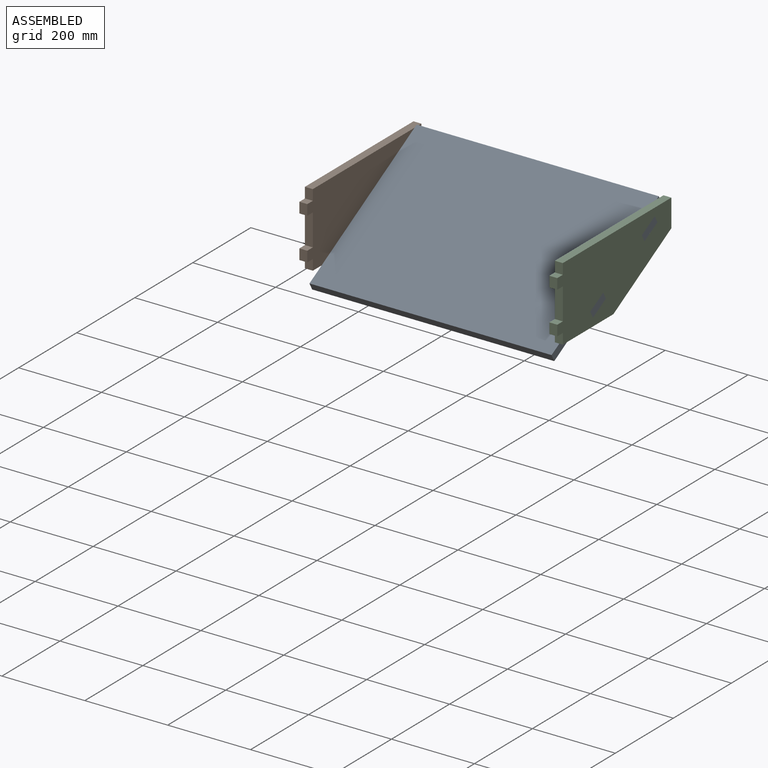
[diagram: assembled view]
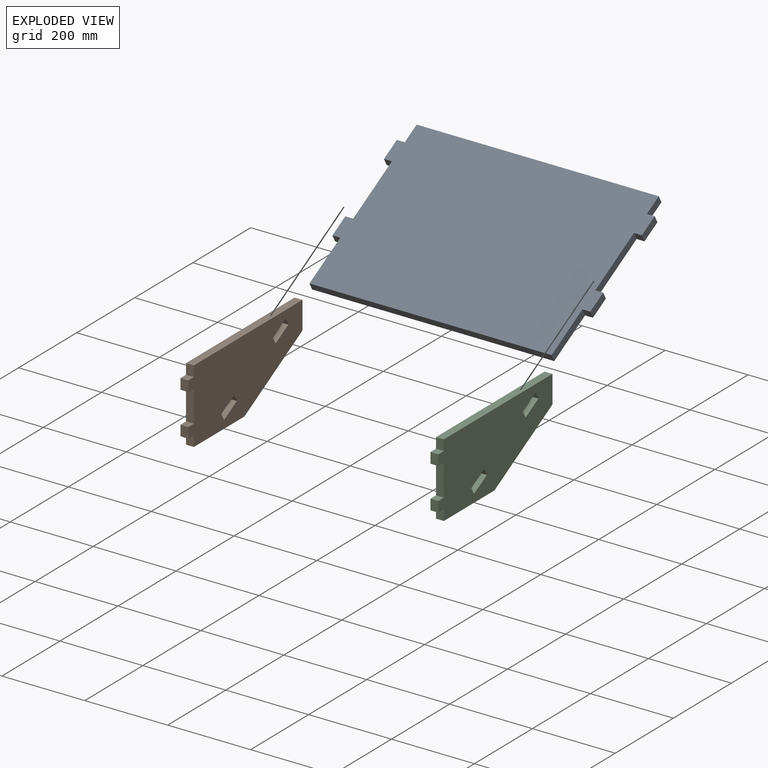
[diagram: exploded view]
GUIDED TOUR — MATED ASSEMBLY (Onshape document 879466acc5ad24adc37cb7cc, AutoMate assembly 879466acc5ad24adc37cb7cc_b2600b43bbd619d86eaf22b3_da891fab06d9ec3ba44434d8_default)

This assembly has 3 components, labeled P0..P2 below (a component is one placed occurrence of a part; the same part can appear more than once), held together by 2 mates. A mate is a constraint between two components; its type names the relative motion it leaves free:
  FASTENED — locks the two components together rigidly (no relative motion),
  SLIDER — leaves translation along the listed axis free.
Axis/direction vectors are unit vectors and 'through' points are millimeter coordinates, both in the assembly's world frame.

MATES
  1. SLIDER "Slider 1": P1 <-> P0, axis (0.000, -0.874, -0.486) through (-701.21, 323.72, -41.12) mm
  2. FASTENED "Fastened 1": P0 <-> P2, direction (0.000, 0.874, 0.486) through (-97.96, 323.72, -41.12) mm

ASSEMBLY ORDER
  1. P0 — the base component [order heuristic]
  2. P1 — core [order heuristic]
  3. P2 [order verified]
Order-tag legend:
  [order verified] — this step's position reverses a verified removal order: the component was checked to insert without passing through the ones already placed.
  [order heuristic] — the first 2 components form the assembly's core: parts whose collision-free extraction could not be verified, listed in mate-graph order.

Of the 3 components, 3 carry the full construction recipe — the FeatureScript program that regenerates the part's solid from scratch; the rest are supplied as boundary geometry only.
Each toured component is shown spotlighted twice — in the assembled view, then in the exploded view, where a leader line traces a displaced component back to its assembled socket (saturated green if recipe-attached, orange if geometry-only; every other component desaturated gray) — followed by its recipe or geometry summary and the mates that hold it.
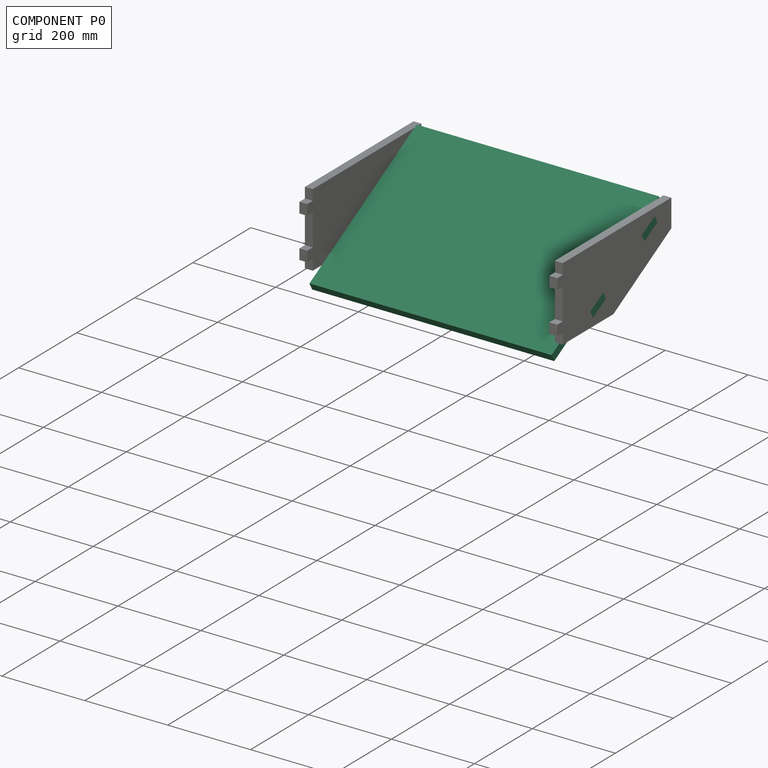
[diagram: component P0 — assembled]
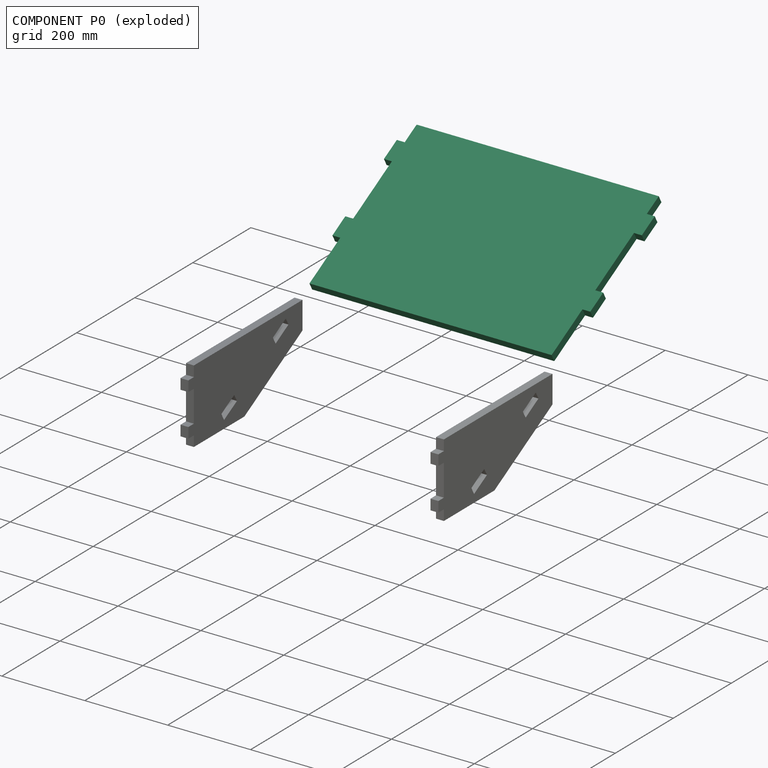
[diagram: component P0 — exploded]
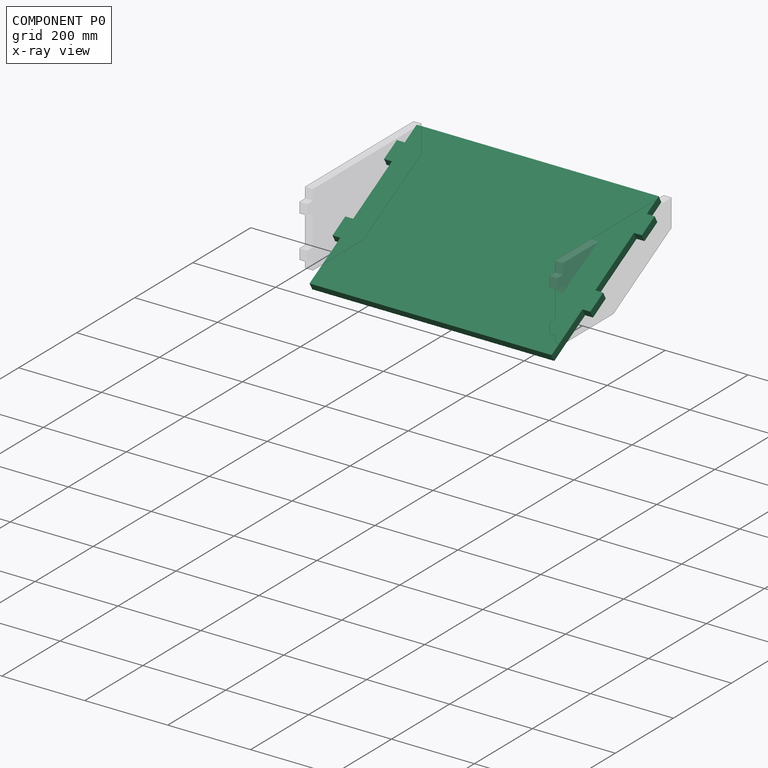
[diagram: component P0 — x-ray view]
COMPONENT P0 — recipe-attached (CADFS 00572429, mesh-verified: the recipe's output STEP matches this component's geometry to below the mesh-comparison resolution (tessellation chordal tolerance ~1.13 mm)).
Held by: SLIDER mate "Slider 1" to P1; FASTENED mate "Fastened 1" to P2.
Construction recipe (FeatureScript — the CAD program that rebuilds this solid; sketch coordinates are in the units given by the * unit suffixes, e.g. mm):

FeatureScript 1549;
import(path : "onshape/std/geometry.fs", version : "1549.0");
import(path : "onshape/std/common.fs", version : "1549.0");
const mm = millimeter;
const VERTEX = EntityType.VERTEX;
const EDGE = EntityType.EDGE;
const FACE = EntityType.FACE;
const BODY = EntityType.BODY;
function v(x, y){return vector(x, y);}
function OD(order){return orderDisambiguation(order);}
function OSD(set){return originalSetDisambiguation(set);}
function TD(topology){return topologyDisambiguation(topology);}
function TDD(query){return trueDependencyDisambiguation(query);}
function sQuery(a, b, c) {return sketchEntityQuery(a, b, c);}

annotation { "Feature Type Name" : "Feature", "Feature Type Description" : "" }
export const myFeature = defineFeature(function(context is Context, id is Id, definition is map)
    precondition{}
    {
        {
            var Q0;
            Q0=qCreatedBy(makeId("Front.planeOp"),FACE);
            var sketch = newSketch(context, id + "F0", { "sketchPlane" : qUnion([Q0])});
            skLineSegment(sketch, "E0.bottom", {"start": v(0, 0) * mm, "end": v(584.2, 0) * mm});
            skLineSegment(sketch, "E0.top", {"start": v(0, 347.98) * mm, "end": v(584.2, 347.98) * mm});
            skLineSegment(sketch, "E0.left", {"start": v(0, 0) * mm, "end": v(0, 46.99) * mm});
            skLineSegment(sketch, "E0.right", {"start": v(584.2, 0) * mm, "end": v(584.2, 46.99) * mm});
            skLineSegment(sketch, "E1", {"start": v(292.1, 347.98) * mm, "end": v(292.1, -296.1) * mm, "construction": true});
            skLineSegment(sketch, "E2", {"start": v(0, 174) * mm, "end": v(768.38, 174) * mm, "construction": true});
            skLineSegment(sketch, "E3.bottom", {"start": v(0, 301) * mm, "end": v(-19.05, 301) * mm});
            skLineSegment(sketch, "E3.top", {"start": v(0, 250.2) * mm, "end": v(-19.05, 250.2) * mm});
            skLineSegment(sketch, "E3.right", {"start": v(-19.05, 301) * mm, "end": v(-19.05, 250.2) * mm});
            skLineSegment(sketch, "E4.MirrorCS", {"start": v(0, 46.99) * mm, "end": v(-19.05, 46.99) * mm});
            skLineSegment(sketch, "E5.MirrorCS", {"start": v(-19.05, 46.99) * mm, "end": v(-19.05, 97.79) * mm});
            skLineSegment(sketch, "E6.MirrorCS", {"start": v(0, 97.79) * mm, "end": v(-19.05, 97.79) * mm});
            skLineSegment(sketch, "E7.MirrorCS", {"start": v(584.2, 301) * mm, "end": v(603.25, 301) * mm});
            skLineSegment(sketch, "E8.MirrorCS", {"start": v(603.25, 301) * mm, "end": v(603.25, 250.2) * mm});
            skLineSegment(sketch, "E9.MirrorCS", {"start": v(584.2, 250.2) * mm, "end": v(603.25, 250.2) * mm});
            skLineSegment(sketch, "E10.MirrorCS", {"start": v(584.2, 97.79) * mm, "end": v(603.25, 97.79) * mm});
            skLineSegment(sketch, "E11.MirrorCS", {"start": v(603.25, 46.99) * mm, "end": v(603.25, 97.79) * mm});
            skLineSegment(sketch, "E12.MirrorCS", {"start": v(584.2, 46.99) * mm, "end": v(603.25, 46.99) * mm});
            skLineSegment(sketch, "E13.trimOffspring", {"start": v(0, 301) * mm, "end": v(0, 347.98) * mm});
            skPoint(sketch, "E14.MirrorCS.end.orphan", {"position": v(0, 97.79) * mm});
            skPoint(sketch, "E14.MirrorCS.start.orphan", {"position": v(0, 46.99) * mm});
            skLineSegment(sketch, "E15.trimOffspring", {"start": v(0, 97.79) * mm, "end": v(0, 250.2) * mm});
            skLineSegment(sketch, "E16.trimOffspring", {"start": v(584.2, 97.79) * mm, "end": v(584.2, 250.2) * mm});
            skLineSegment(sketch, "E17.trimOffspring", {"start": v(584.2, 301) * mm, "end": v(584.2, 347.98) * mm});
            skLineSegment(sketch, "E18", {"start": v(0, 347.98) * mm, "end": v(0, 422.61) * mm});
            skLineSegment(sketch, "E19", {"start": v(584.2, 347.98) * mm, "end": v(584.2, 422.61) * mm});
            skLineSegment(sketch, "E20", {"start": v(0, 422.61) * mm, "end": v(584.2, 422.61) * mm});
            skSolve(sketch);
        }
        {
            var Q0;
            Q0 = qSketchRegion(id + "F0", true);
            extrude(context, id + "F1", {"entities" : qUnion([Q0]), "depth" : 19.05 * mm, "offsetDistance" : 25.4 * mm});
        }
    });
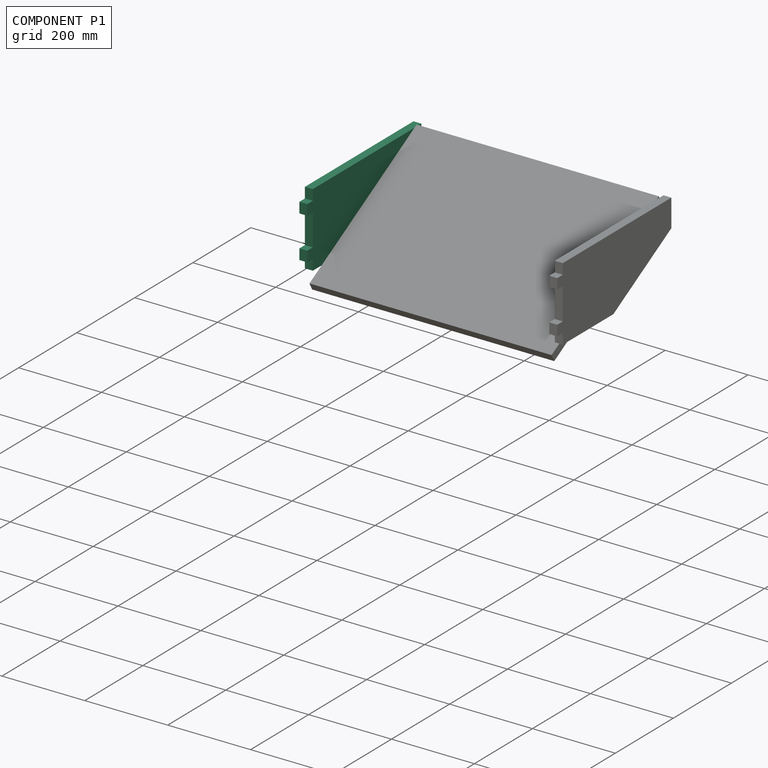
[diagram: component P1 — assembled]
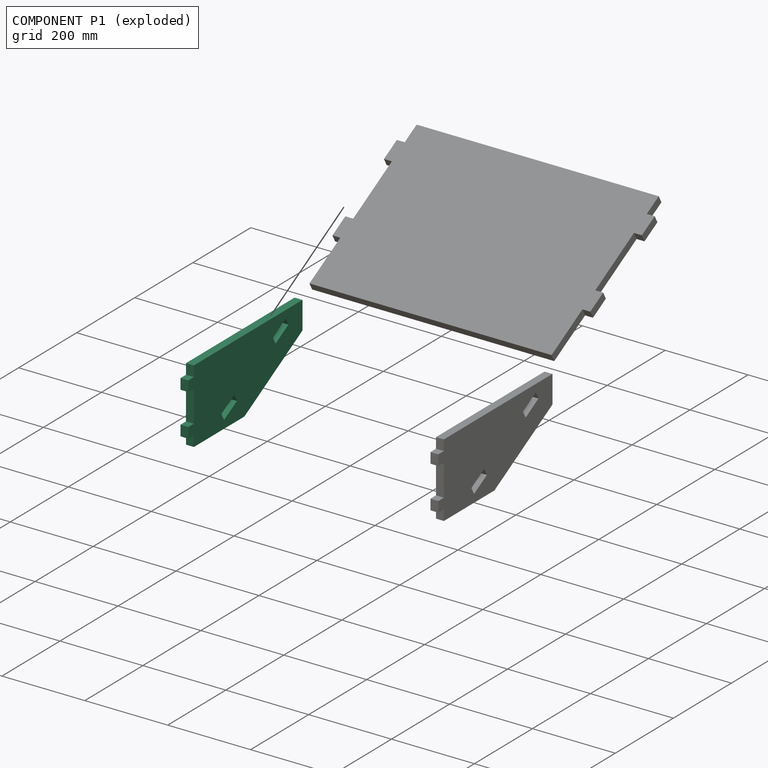
[diagram: component P1 — exploded]
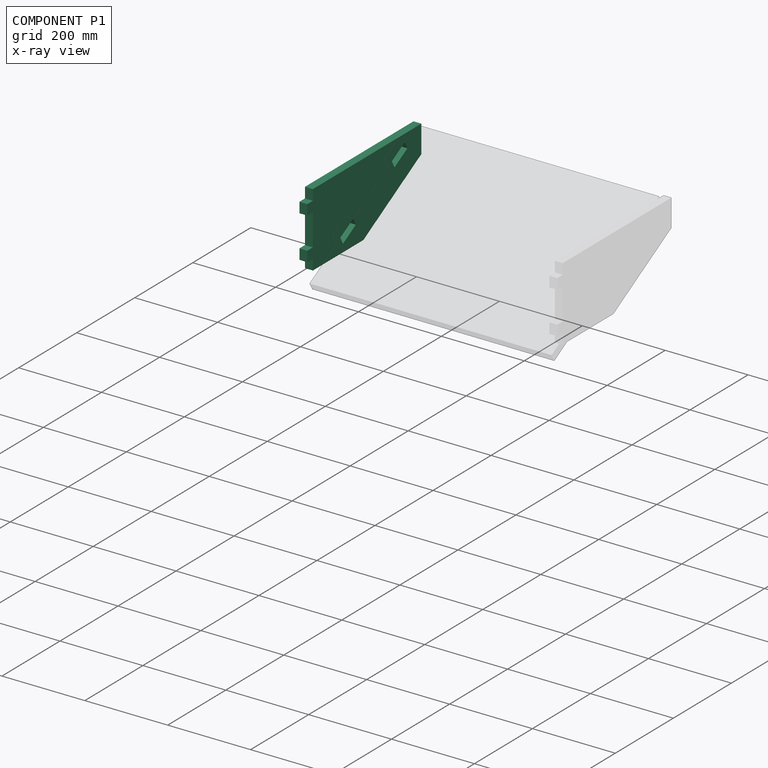
[diagram: component P1 — x-ray view]
COMPONENT P1 — recipe-attached (CADFS 00572428, mesh-verified: the recipe's output STEP matches this component's geometry to below the mesh-comparison resolution (tessellation chordal tolerance ~0.648 mm)).
Held by: SLIDER mate "Slider 1" to P0.
Construction recipe (FeatureScript — the CAD program that rebuilds this solid; sketch coordinates are in the units given by the * unit suffixes, e.g. mm):

FeatureScript 1549;
import(path : "onshape/std/geometry.fs", version : "1549.0");
import(path : "onshape/std/common.fs", version : "1549.0");
const mm = millimeter;
const VERTEX = EntityType.VERTEX;
const EDGE = EntityType.EDGE;
const FACE = EntityType.FACE;
const BODY = EntityType.BODY;
function v(x, y){return vector(x, y);}
function OD(order){return orderDisambiguation(order);}
function OSD(set){return originalSetDisambiguation(set);}
function TD(topology){return topologyDisambiguation(topology);}
function TDD(query){return trueDependencyDisambiguation(query);}
function sQuery(a, b, c) {return sketchEntityQuery(a, b, c);}

annotation { "Feature Type Name" : "Feature", "Feature Type Description" : "" }
export const myFeature = defineFeature(function(context is Context, id is Id, definition is map)
    precondition{}
    {
        {
            var Q0;
            Q0=qCreatedBy(makeId("Front.planeOp"),FACE);
            var sketch = newSketch(context, id + "F0", { "sketchPlane" : qUnion([Q0])});
            skLineSegment(sketch, "E0", {"start": v(-17.78, 189.6) * mm, "end": v(-84.48, 189.6) * mm});
            skLineSegment(sketch, "E1", {"start": v(-84.48, 189.6) * mm, "end": v(-84.48, -184.49) * mm});
            skLineSegment(sketch, "E2", {"start": v(-84.48, -184.49) * mm, "end": v(93.37, -184.49) * mm});
            skLineSegment(sketch, "E3", {"start": v(93.37, -184.49) * mm, "end": v(93.37, -10.24) * mm});
            skLineSegment(sketch, "E4", {"start": v(-17.78, 189.6) * mm, "end": v(93.37, -10.24) * mm});
            skLineSegment(sketch, "E5", {"start": v(67.97, -184.49) * mm, "end": v(67.97, -203.54) * mm});
            skLineSegment(sketch, "E6", {"start": v(67.97, -203.54) * mm, "end": v(42.57, -203.54) * mm});
            skLineSegment(sketch, "E7", {"start": v(42.57, -203.54) * mm, "end": v(42.57, -184.49) * mm});
            skLineSegment(sketch, "E8", {"start": v(-33.68, -184.49) * mm, "end": v(-33.68, -203.54) * mm});
            skLineSegment(sketch, "E9", {"start": v(-33.68, -203.54) * mm, "end": v(-59.08, -203.54) * mm});
            skLineSegment(sketch, "E10", {"start": v(-59.08, -203.54) * mm, "end": v(-59.08, -184.49) * mm});
            skSolve(sketch);
        }
        {
            var Q0;
            Q0=makeQuery(id+"F0.imprint","IMPRINT",FACE,{"disambiguationData":[TD([[makeQuery(id+"F0.imprint","IMPRINT",EDGE,{"derivedFrom":sQuery(id+"F0.wireOp",EDGE,"E0")}),1.0]])]});
            var Q1;
            {var subQ0=sQuery(id+"F0.wireOp",EDGE,"E5");Q1=makeQuery(id+"F0.imprint","IMPRINT",FACE,{"disambiguationData":[TD([[makeQuery(id+"F0.imprint","IMPRINT",EDGE,{"derivedFrom":subQ0}),-1.0]])]});}
            var Q2;
            {var subQ0=sQuery(id+"F0.wireOp",EDGE,"E8");Q2=makeQuery(id+"F0.imprint","IMPRINT",FACE,{"disambiguationData":[TD([[makeQuery(id+"F0.imprint","IMPRINT",EDGE,{"derivedFrom":subQ0}),-1.0]])]});}
            extrude(context, id + "F1", {"entities" : qUnion([Q0, Q1, Q2]), "depth" : 19.05 * mm, "offsetDistance" : 25.4 * mm});
        }
        {
            var Q0;
            Q0=makeQuery(id+"F1.opExtrude","CAP_FACE",FACE,{"disambiguationData":[OSD([sQuery(id+"F0.wireOp",EDGE,"E0"),sQuery(id+"F0.wireOp",EDGE,"E1"),sQuery(id+"F0.wireOp",EDGE,"E2"),sQuery(id+"F0.wireOp",EDGE,"E3"),sQuery(id+"F0.wireOp",EDGE,"E4"),sQuery(id+"F0.wireOp",EDGE,"E5"),sQuery(id+"F0.wireOp",EDGE,"E6"),sQuery(id+"F0.wireOp",EDGE,"E7"),sQuery(id+"F0.wireOp",EDGE,"E8"),sQuery(id+"F0.wireOp",EDGE,"E9"),sQuery(id+"F0.wireOp",EDGE,"E10")])],"isStart":false});
            var sketch = newSketch(context, id + "F2", { "sketchPlane" : qUnion([Q0])});
            skLineSegment(sketch, "E11.0", {"start": v(-17.78, 189.6) * mm, "end": v(93.37, -10.24) * mm});
            skLineSegment(sketch, "E12.0", {"start": v(-49.14, 141.47) * mm, "end": v(-24.45, 97.08) * mm});
            skLineSegment(sketch, "E13.0", {"start": v(-65.79, 132.21) * mm, "end": v(-41.1, 87.82) * mm});
            skLineSegment(sketch, "E14", {"start": v(-65.79, 132.21) * mm, "end": v(-49.14, 141.47) * mm});
            skLineSegment(sketch, "E15.0", {"start": v(-41.1, 87.82) * mm, "end": v(-24.45, 97.08) * mm});
            skLineSegment(sketch, "E16.0", {"start": v(32.98, -45.37) * mm, "end": v(49.63, -36.1) * mm});
            skLineSegment(sketch, "E17.trimOffspring", {"start": v(32.98, -45.37) * mm, "end": v(57.67, -89.76) * mm});
            skLineSegment(sketch, "E18.trimOffspring", {"start": v(49.63, -36.1) * mm, "end": v(74.32, -80.5) * mm});
            skLineSegment(sketch, "E19.0", {"start": v(74.32, -184.49) * mm, "end": v(74.32, -10.24) * mm, "construction": true});
            skLineSegment(sketch, "E20", {"start": v(74.32, -80.5) * mm, "end": v(57.67, -89.76) * mm});
            skLineSegment(sketch, "E21", {"start": v(93.37, -114.76) * mm, "end": v(-75.9, 189.6) * mm, "construction": true});
            skLineSegment(sketch, "E22.0", {"start": v(93.37, -184.49) * mm, "end": v(93.37, -10.24) * mm});
            skLineSegment(sketch, "E23.0", {"start": v(-17.78, 189.6) * mm, "end": v(-84.48, 189.6) * mm});
            skSolve(sketch);
        }
        {
            var Q0;
            Q0 = qSketchRegion(id + "F2", true);
            extrude(context, id + "F3", {"entities" : qUnion([Q0]), "operationType" : NewBodyOperationType.REMOVE, "endBound" : BoundingType.THROUGH_ALL, "oppositeDirection" : true, "depth" : 25.4 * mm, "offsetDistance" : 25.4 * mm});
        }
    });
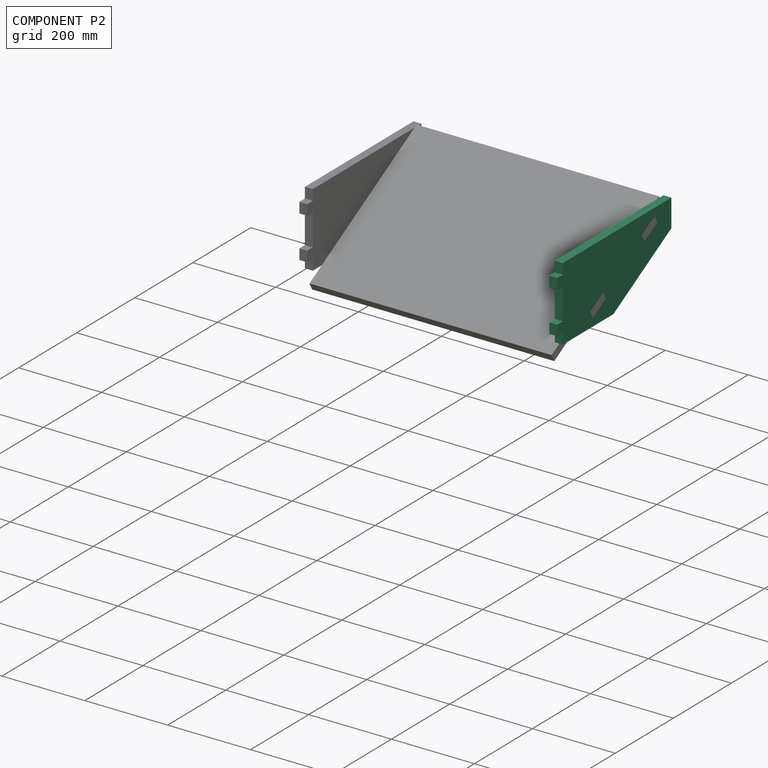
[diagram: component P2 — assembled]
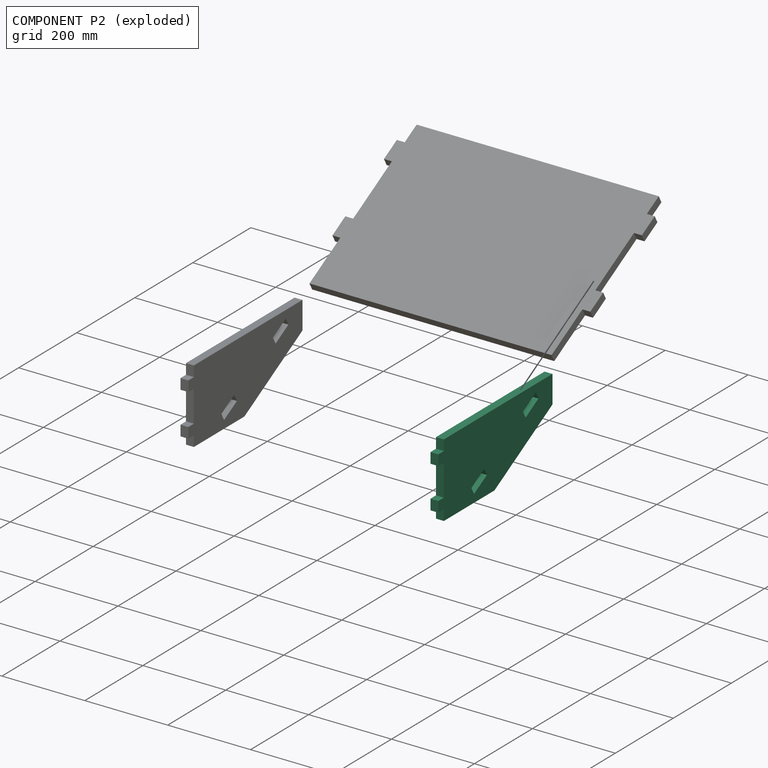
[diagram: component P2 — exploded]
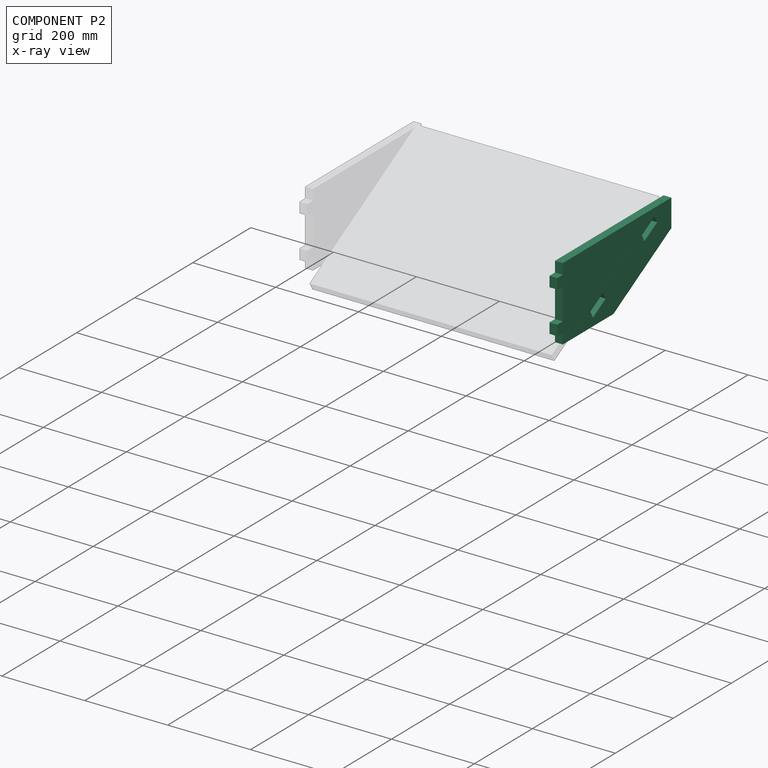
[diagram: component P2 — x-ray view]
COMPONENT P2 — same part as P1 (CADFS 00572428); its construction recipe is shown at P1.
Held by: FASTENED mate "Fastened 1" to P0.
PROVENANCE & LICENSES
Assembly (occurrences, transforms, mates, per-part STEP geometry): AutoMate dataset, Zenodo record 7776208, CC0.
Construction recipes: CADFS (HuggingFace VladPyatov/CADFS, CC-BY-4.0, layered over the ABC dataset), FeatureScript reconstruction programs keyed by ABC model id.
Join: ABC meta listings map ABC model id -> Onshape documentId; within a shared document, parts are matched by geometric signature (bounding-box dims + volume at 0.1% relative tolerance, exact B-rep face/solid counts).
Verification: 3 of this assembly's 3 components carry a recipe attachment, and every attachment is mesh-verified: the CADFS STEP and the AutoMate member STEP were compared as meshes in their shared local frame (symmetric sampled-point-to-mesh distance); worst across the 3 attachments: below the mesh-comparison resolution (tessellation chordal tolerance ~1.13 mm) on a 752 mm part.
Renders: orthographic iso camera (az 35 / el 25); the floor grid conveys scale (grid pitch printed in each image; no ruler). In the exploded view each component is displaced by its stored offset vector: the offsets alone carry the explosion direction (mate normal/axis signs are not orientation cues and do not encode it), and separation distances are assigned per mate-chain, not proportionally to assembly-order depth.
